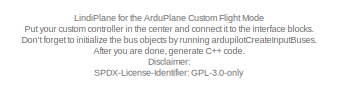
[diagram: root canvas - part 1/8, top center region]
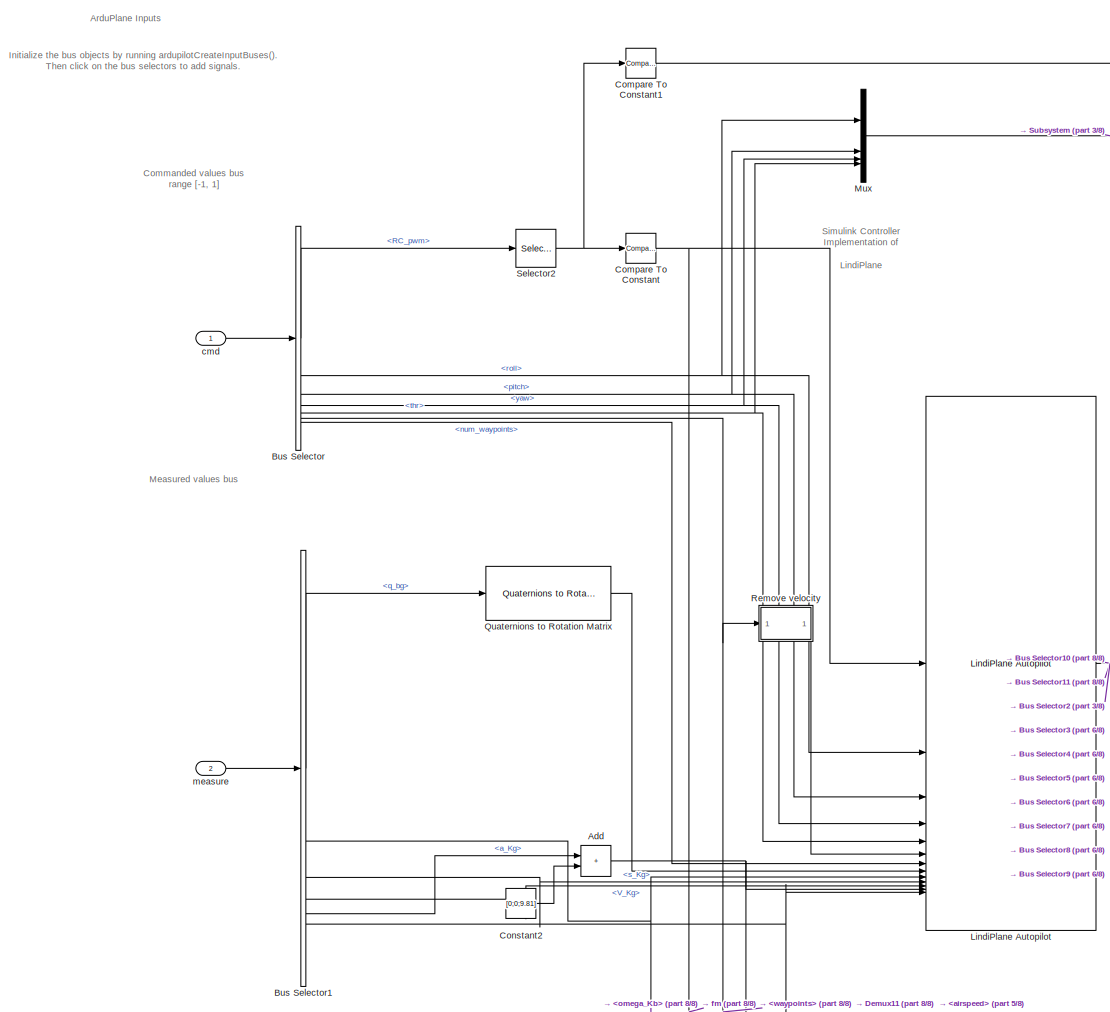
[diagram: root canvas - part 2/8, top left region]
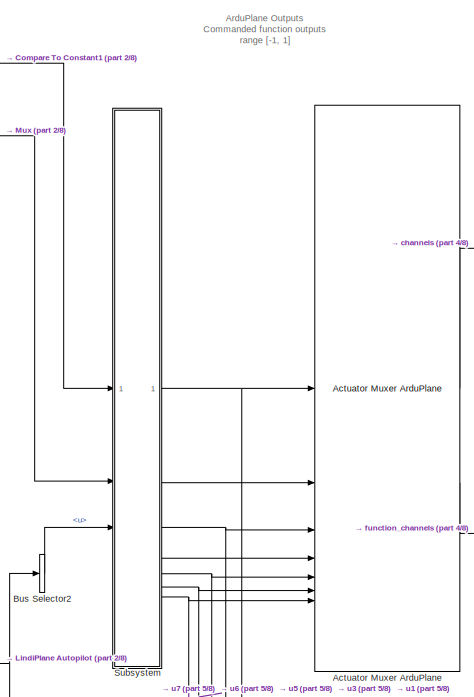
[diagram: root canvas - part 3/8, top right region]
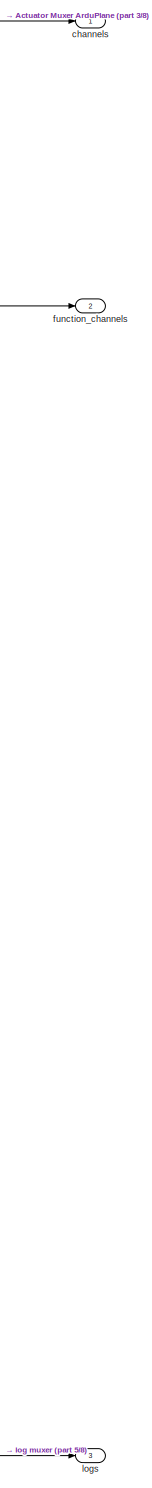
[diagram: root canvas - part 4/8, middle right region]
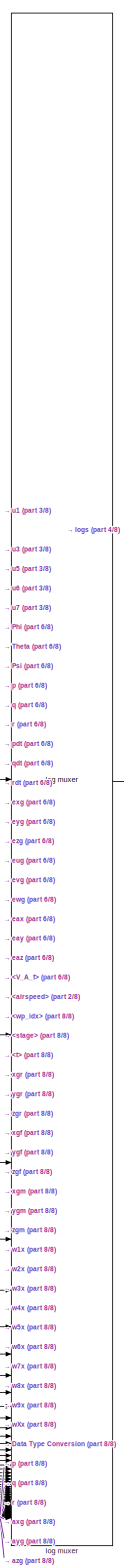
[diagram: root canvas - part 5/8, middle right region]
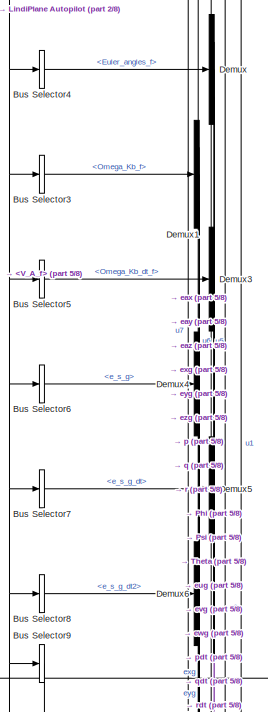
[diagram: root canvas - part 6/8, middle right region]
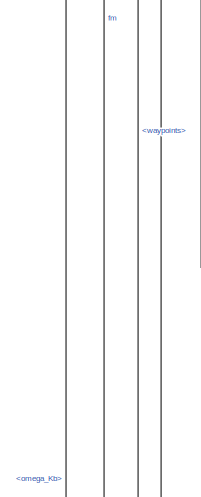
[diagram: root canvas - part 7/8, central region]
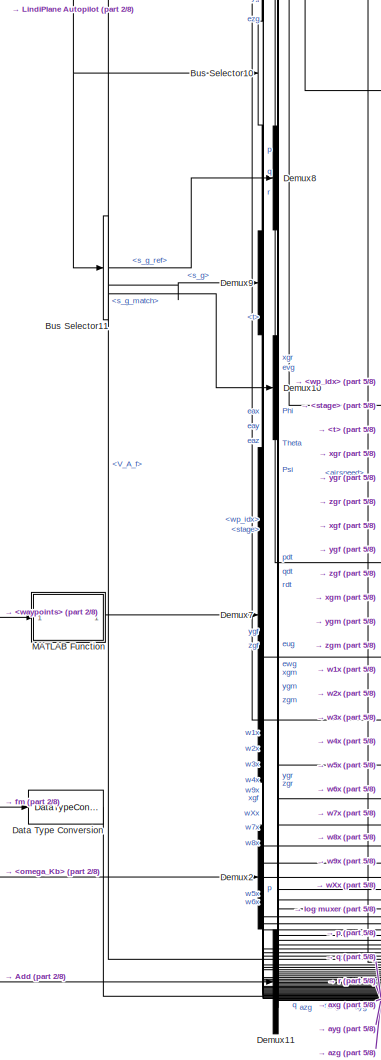
[diagram: root canvas - part 8/8, bottom right region]
MODEL slx_bea8ca05855a
KIND model
CONFIG AbsTol = auto
CONFIG EnableMultiTasking = on
CONFIG FixedStep = 0.01
CONFIG MaxStep = auto
CONFIG MinStep = auto
CONFIG RelTol = 1e-4
CONFIG SampleTimeConstraint = Unconstrained
CONFIG SolverName = FixedStepAuto
CONFIG StartTime = 0.0
CONFIG StopTime = 1000
BLOCK [Reference] Actuator Muxer ArduPlane  REF=ardupilot_custom_controller_lib/Actuator Muxer ArduPlane  (lib defined in slx_bbc4fb9a1307)
  SourceBlock = ardupilot_custom_controller_lib/Actuator Muxer ArduPlane
  SourceProductName = LADAC
BLOCK [Sum] Add
  IconShape = rectangular
BLOCK [BusSelector] Bus Selector
  OutputSignals = RC_pwm,roll,pitch,yaw,thr,waypoints,num_waypoints
BLOCK [BusSelector] Bus Selector1
  OutputSignals = q_bg,omega_Kb,s_Kg,V_Kg,a_Kg,airspeed
BLOCK [BusSelector] Bus Selector10
  OutputSignals = wpnav.wp_idx,wpnav.stage,wpnav.t
BLOCK [BusSelector] Bus Selector11
  OutputSignals = pos_control.reference.s_g_ref,pos_control.measure.s_g,wpnav.s_g_match
BLOCK [BusSelector] Bus Selector2
  OutputSignals = inner_loop_indi.u
BLOCK [BusSelector] Bus Selector3
  OutputSignals = measurements.Omega_Kb_f
BLOCK [BusSelector] Bus Selector4
  OutputSignals = measurements.Euler_angles_f
BLOCK [BusSelector] Bus Selector5
  OutputSignals = measurements.Omega_Kb_dt_f
BLOCK [BusSelector] Bus Selector6
  OutputSignals = pos_control.error.e_s_g
BLOCK [BusSelector] Bus Selector7
  OutputSignals = pos_control.error.e_s_g_dt
BLOCK [BusSelector] Bus Selector8
  OutputSignals = pos_control.error.e_s_g_dt2
BLOCK [BusSelector] Bus Selector9
  OutputSignals = measurements.V_A_f
BLOCK [Reference] Compare To Constant  REF=simulink/Logic and Bit
Operations/Compare
To Constant
  SourceBlock = simulink/Logic and Bit\nOperations/Compare\nTo Constant
  SourceType = Compare To Constant
BLOCK [Reference] Compare To Constant1  REF=simulink/Logic and Bit
Operations/Compare
To Constant
  SourceBlock = simulink/Logic and Bit\nOperations/Compare\nTo Constant
  SourceType = Compare To Constant
BLOCK [Constant] Constant2
  OutDataTypeStr = Inherit: Inherit via back propagation
  Value = [0;0;9.81]
BLOCK [DataTypeConversion] Data Type Conversion
  OutDataTypeStr = single
  RndMeth = Floor
  SaturateOnIntegerOverflow = off
BLOCK [Demux] Demux
  Outputs = 3
BLOCK [Demux] Demux1
  Outputs = 3
BLOCK [Demux] Demux10
  Outputs = 3
BLOCK [Demux] Demux11
  Outputs = 3
BLOCK [Demux] Demux2
  Outputs = 3
BLOCK [Demux] Demux3
  Outputs = 3
BLOCK [Demux] Demux4
  Outputs = 3
BLOCK [Demux] Demux5
  Outputs = 3
BLOCK [Demux] Demux6
  Outputs = 3
BLOCK [Demux] Demux7
  Outputs = 10
BLOCK [Demux] Demux8
  Outputs = 3
BLOCK [Demux] Demux9
  Outputs = 3
BLOCK [Reference] LindiPlane Autopilot  REF=lindiPlane_lib/LindiPlane Autopilot
  SourceBlock = lindiPlane_lib/LindiPlane Autopilot
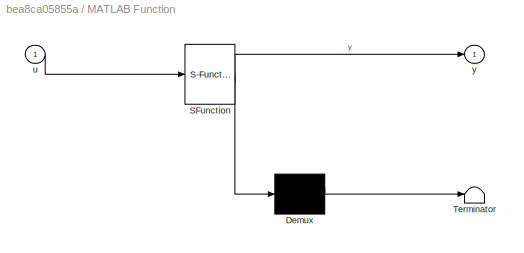
BLOCK [SubSystem] MATLAB Function
  ErrorFcn = Stateflow.Translate.translate
  PermitHierarchicalResolution = ExplicitOnly
  SFBlockType = MATLAB Function
  TreatAsAtomicUnit = on
BLOCK [Demux] MATLAB Function/ Demux 
  Outputs = 1
BLOCK [S-Function] MATLAB Function/ SFunction 
  EnableBusSupport = off
  FunctionName = sf_sfun
  PortCounts = [1 2]
  SFcnIsStateOwnerBlock = off
  SFunctionDeploymentMode = off
  Tag = Stateflow S-Function 3
BLOCK [Terminator] MATLAB Function/ Terminator 
BLOCK [Inport] MATLAB Function/u
BLOCK [Outport] MATLAB Function/y
  VectorParamsAs1DForOutWhenUnconnected = off
BLOCK [Mux] Mux
  DisplayOption = bar
BLOCK [Reference] Quaternions to Rotation Matrix  REF=axes_transformation_lib/Quaternions to Rotation Matrix  (lib defined in slx_69e2413c78c0)
  SourceBlock = axes_transformation_lib/Quaternions to Rotation Matrix
  SourceProductName = LADAC
  SourceType = SubSystem
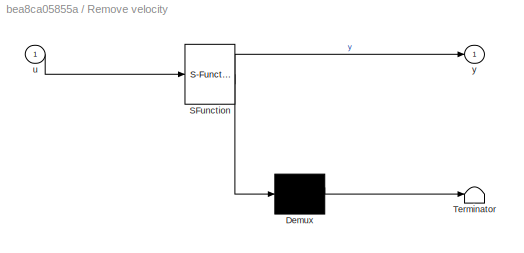
BLOCK [SubSystem] Remove velocity
  ErrorFcn = Stateflow.Translate.translate
  PermitHierarchicalResolution = ExplicitOnly
  SFBlockType = MATLAB Function
  TreatAsAtomicUnit = on
BLOCK [Demux] Remove velocity/ Demux 
  Outputs = 1
BLOCK [S-Function] Remove velocity/ SFunction 
  EnableBusSupport = off
  FunctionName = sf_sfun
  PortCounts = [1 2]
  SFcnIsStateOwnerBlock = off
  SFunctionDeploymentMode = off
  Tag = Stateflow S-Function 1
BLOCK [Terminator] Remove velocity/ Terminator 
BLOCK [Inport] Remove velocity/u
BLOCK [Outport] Remove velocity/y
  VectorParamsAs1DForOutWhenUnconnected = off
BLOCK [Selector] Selector2
  IndexOptions = Index vector (dialog)
  Indices = 8
  InputPortWidth = 16
  OutputSizes = 1
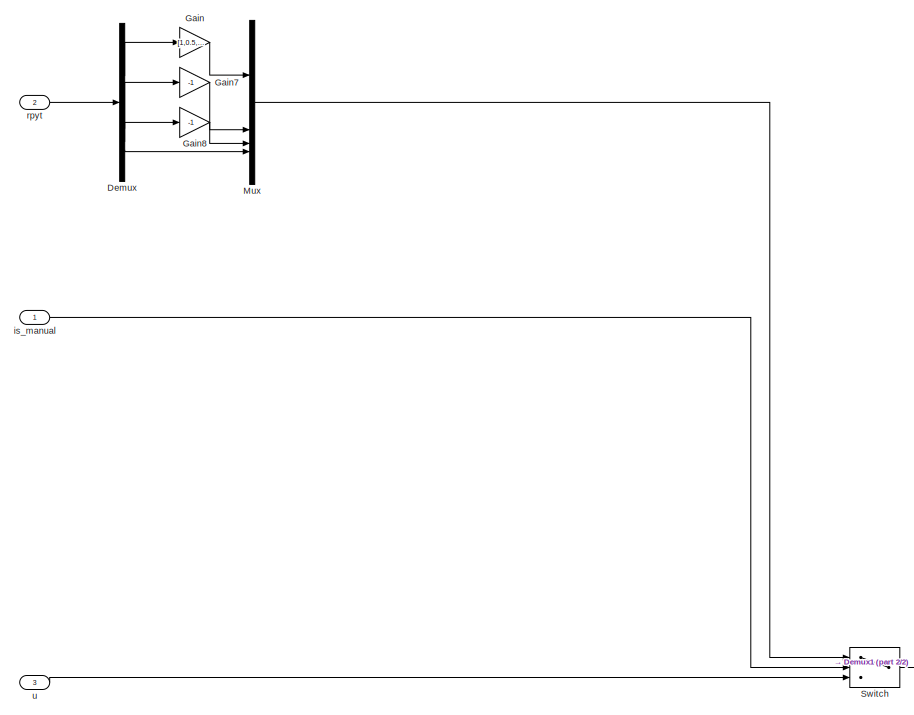
[diagram: Subsystem - part 1/2, central region]
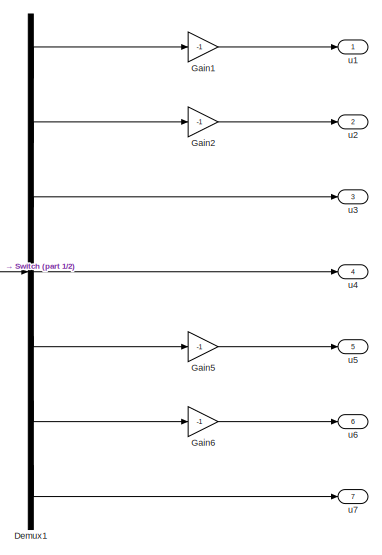
[diagram: Subsystem - part 2/2, bottom right region]
BLOCK [SubSystem] Subsystem
BLOCK [Demux] Subsystem/Demux
BLOCK [Demux] Subsystem/Demux1
  Outputs = 7
BLOCK [Gain] Subsystem/Gain
  Gain = [1,0.5,-0.5,-1]
BLOCK [Gain] Subsystem/Gain1
  Gain = -1
BLOCK [Gain] Subsystem/Gain2
  Gain = -1
BLOCK [Gain] Subsystem/Gain5
  Gain = -1
BLOCK [Gain] Subsystem/Gain6
  Gain = -1
BLOCK [Gain] Subsystem/Gain7
  Gain = -1
BLOCK [Gain] Subsystem/Gain8
  Gain = -1
BLOCK [Mux] Subsystem/Mux
  DisplayOption = bar
BLOCK [Switch] Subsystem/Switch
  Criteria = u2 > Threshold
  InputSameDT = off
  SaturateOnIntegerOverflow = off
BLOCK [Inport] Subsystem/is_manual
BLOCK [Inport] Subsystem/rpyt
  Port = 2
BLOCK [Inport] Subsystem/u
  Port = 3
BLOCK [Outport] Subsystem/u1
  VectorParamsAs1DForOutWhenUnconnected = off
BLOCK [Outport] Subsystem/u2
  Port = 2
  VectorParamsAs1DForOutWhenUnconnected = off
BLOCK [Outport] Subsystem/u3
  Port = 3
  VectorParamsAs1DForOutWhenUnconnected = off
BLOCK [Outport] Subsystem/u4
  Port = 4
  VectorParamsAs1DForOutWhenUnconnected = off
BLOCK [Outport] Subsystem/u5
  Port = 5
  VectorParamsAs1DForOutWhenUnconnected = off
BLOCK [Outport] Subsystem/u6
  Port = 6
  VectorParamsAs1DForOutWhenUnconnected = off
BLOCK [Outport] Subsystem/u7
  Port = 7
  VectorParamsAs1DForOutWhenUnconnected = off
BLOCK [Outport] channels
  VectorParamsAs1DForOutWhenUnconnected = off
BLOCK [Inport] cmd
  OutDataTypeStr = Bus: cmdBus
BLOCK [Outport] function_channels
  Port = 2
  VectorParamsAs1DForOutWhenUnconnected = off
BLOCK [Reference] log muxer  REF=ardupilot_custom_controller_lib/log muxer  (lib defined in slx_bbc4fb9a1307)
  SourceBlock = ardupilot_custom_controller_lib/log muxer
  SourceProductName = LADAC
BLOCK [Outport] logs
  Port = 3
  VectorParamsAs1DForOutWhenUnconnected = off
BLOCK [Inport] measure
  OutDataTypeStr = Bus: measureBus
  Port = 2
ANNOTATION (root): Commanded values bus range [-1, 1]
ANNOTATION (root): ArduPlane Inputs
ANNOTATION (root): ArduPlane Outputs Commanded function outputs range [-1, 1]
ANNOTATION (root): Simulink Controller Implementation of LindiPlane
ANNOTATION (root): LindiPlane for the ArduPlane Custom Flight Mode Put your custom controller in the center and connect it to the interface blocks. Don't forget to initialize the bus objects by running ardupilotCreateInputBuses. After you are done, generate C++ code. Disclaimer: SPDX-License-Identifier: GPL-3.0-only <copyright redacted>
ANNOTATION (root): Measured values bus
ANNOTATION (root): Initialize the bus objects by running ardupilotCreateInputBuses(). Then click on the bus selectors to add signals.
LINE Actuator Muxer ArduPlane:1 -> channels:1
LINE Actuator Muxer ArduPlane:2 -> function_channels:1
NET Add:1 -> Demux11:1, LindiPlane Autopilot:12
LINE Bus Selector10:1 -> log muxer:26
LINE Bus Selector10:2 -> log muxer:27
LINE Bus Selector10:3 -> log muxer:28
LINE Bus Selector11:1 -> Demux8:1
LINE Bus Selector11:2 -> Demux9:1
LINE Bus Selector11:3 -> Demux10:1
LINE Bus Selector1:1 -> Quaternions to Rotation Matrix:1
NET Bus Selector1:2 -> Demux2:1, LindiPlane Autopilot:9
LINE Bus Selector1:3 -> LindiPlane Autopilot:10
LINE Bus Selector1:4 -> LindiPlane Autopilot:11
LINE Bus Selector1:5 -> Add:1
NET Bus Selector1:6 -> LindiPlane Autopilot:13, log muxer:25
LINE Bus Selector2:1 -> Subsystem:3
LINE Bus Selector3:1 -> Demux1:1
LINE Bus Selector4:1 -> Demux:1
LINE Bus Selector5:1 -> Demux3:1
LINE Bus Selector6:1 -> Demux4:1
LINE Bus Selector7:1 -> Demux5:1
LINE Bus Selector8:1 -> Demux6:1
LINE Bus Selector9:1 -> log muxer:24
LINE Bus Selector:1 -> Selector2:1
NET Bus Selector:2 -> LindiPlane Autopilot:2, Mux:1
NET Bus Selector:3 -> LindiPlane Autopilot:3, Mux:2
NET Bus Selector:4 -> LindiPlane Autopilot:4, Mux:3
NET Bus Selector:5 -> LindiPlane Autopilot:5, Mux:4
NET Bus Selector:6 -> MATLAB Function:1, Remove velocity:1
LINE Bus Selector:7 -> LindiPlane Autopilot:7
LINE Compare To Constant1:1 -> Subsystem:1
NET Compare To Constant:1 -> Data Type Conversion:1, LindiPlane Autopilot:1
LINE Constant2:1 -> Add:2
LINE Data Type Conversion:1 -> log muxer:48
LINE Demux10:1 -> log muxer:35
LINE Demux10:2 -> log muxer:36
LINE Demux10:3 -> log muxer:37
LINE Demux11:1 -> log muxer:52
LINE Demux11:2 -> log muxer:53
LINE Demux11:3 -> log muxer:54
LINE Demux1:1 -> log muxer:9
LINE Demux1:2 -> log muxer:10
LINE Demux1:3 -> log muxer:11
LINE Demux2:1 -> log muxer:49
LINE Demux2:2 -> log muxer:50
LINE Demux2:3 -> log muxer:51
LINE Demux3:1 -> log muxer:12
LINE Demux3:2 -> log muxer:13
LINE Demux3:3 -> log muxer:14
LINE Demux4:1 -> log muxer:15
LINE Demux4:2 -> log muxer:16
LINE Demux4:3 -> log muxer:17
LINE Demux5:1 -> log muxer:18
LINE Demux5:2 -> log muxer:19
LINE Demux5:3 -> log muxer:20
LINE Demux6:1 -> log muxer:21
LINE Demux6:2 -> log muxer:22
LINE Demux6:3 -> log muxer:23
LINE Demux7:1 -> log muxer:38
LINE Demux7:10 -> log muxer:47
LINE Demux7:2 -> log muxer:39
LINE Demux7:3 -> log muxer:40
LINE Demux7:4 -> log muxer:41
LINE Demux7:5 -> log muxer:42
LINE Demux7:6 -> log muxer:43
LINE Demux7:7 -> log muxer:44
LINE Demux7:8 -> log muxer:45
LINE Demux7:9 -> log muxer:46
LINE Demux8:1 -> log muxer:29
LINE Demux8:2 -> log muxer:30
LINE Demux8:3 -> log muxer:31
LINE Demux9:1 -> log muxer:32
LINE Demux9:2 -> log muxer:33
LINE Demux9:3 -> log muxer:34
LINE Demux:1 -> log muxer:6
LINE Demux:2 -> log muxer:7
LINE Demux:3 -> log muxer:8
NET LindiPlane Autopilot:1 -> Bus Selector10:1, Bus Selector11:1, Bus Selector2:1, Bus Selector3:1, Bus Selector4:1, Bus Selector5:1, Bus Selector6:1, Bus Selector7:1, Bus Selector8:1, Bus Selector9:1
LINE MATLAB Function:1 -> Demux7:1
LINE Mux:1 -> Subsystem:2
LINE Quaternions to Rotation Matrix:1 -> LindiPlane Autopilot:8
LINE Remove velocity:1 -> LindiPlane Autopilot:6
NET Selector2:1 -> Compare To Constant1:1, Compare To Constant:1
LINE Subsystem/Demux1:1 -> Subsystem/Gain1:1
LINE Subsystem/Demux1:2 -> Subsystem/Gain2:1
LINE Subsystem/Demux1:3 -> Subsystem/u3:1
LINE Subsystem/Demux1:4 -> Subsystem/u4:1
LINE Subsystem/Demux1:5 -> Subsystem/Gain5:1
LINE Subsystem/Demux1:6 -> Subsystem/Gain6:1
LINE Subsystem/Demux1:7 -> Subsystem/u7:1
LINE Subsystem/Demux:1 -> Subsystem/Gain:1
LINE Subsystem/Demux:2 -> Subsystem/Gain7:1
LINE Subsystem/Demux:3 -> Subsystem/Gain8:1
LINE Subsystem/Demux:4 -> Subsystem/Mux:4
LINE Subsystem/Gain1:1 -> Subsystem/u1:1
LINE Subsystem/Gain2:1 -> Subsystem/u2:1
LINE Subsystem/Gain5:1 -> Subsystem/u5:1
LINE Subsystem/Gain6:1 -> Subsystem/u6:1
LINE Subsystem/Gain7:1 -> Subsystem/Mux:2
LINE Subsystem/Gain8:1 -> Subsystem/Mux:3
LINE Subsystem/Gain:1 -> Subsystem/Mux:1
LINE Subsystem/Mux:1 -> Subsystem/Switch:1
LINE Subsystem/Switch:1 -> Subsystem/Demux1:1
LINE Subsystem/is_manual:1 -> Subsystem/Switch:2
LINE Subsystem/rpyt:1 -> Subsystem/Demux:1
LINE Subsystem/u:1 -> Subsystem/Switch:3
NET Subsystem:1 -> Actuator Muxer ArduPlane:1, log muxer:1
LINE Subsystem:2 -> Actuator Muxer ArduPlane:2
NET Subsystem:3 -> Actuator Muxer ArduPlane:3, log muxer:2
LINE Subsystem:4 -> Actuator Muxer ArduPlane:4
NET Subsystem:5 -> Actuator Muxer ArduPlane:5, log muxer:3
NET Subsystem:6 -> Actuator Muxer ArduPlane:6, log muxer:4
NET Subsystem:7 -> Actuator Muxer ArduPlane:7, log muxer:5
LINE cmd:1 -> Bus Selector:1
LINE log muxer:1 -> logs:1
LINE measure:1 -> Bus Selector1:1
note: NET lines group one-source signal fan-out (src -> all destinations, sorted); 1:1 wires keep LINE
CHART MATLAB Function states=1 transitions=1
  STATE_LABEL 'eML_blk_kernel()'
  STATE_LABEL 'SCRIPT:\nfunction y = fcn(u)\n\ny = u(1,:);\n'
CHART Remove velocity states=1 transitions=1
  STATE_LABEL 'eML_blk_kernel()'
  STATE_LABEL 'SCRIPT:\nfunction y = fcn(u)\ny = u(1:3,:);\nend'
CHART  states=0 transitions=0
CHART  states=0 transitions=0
